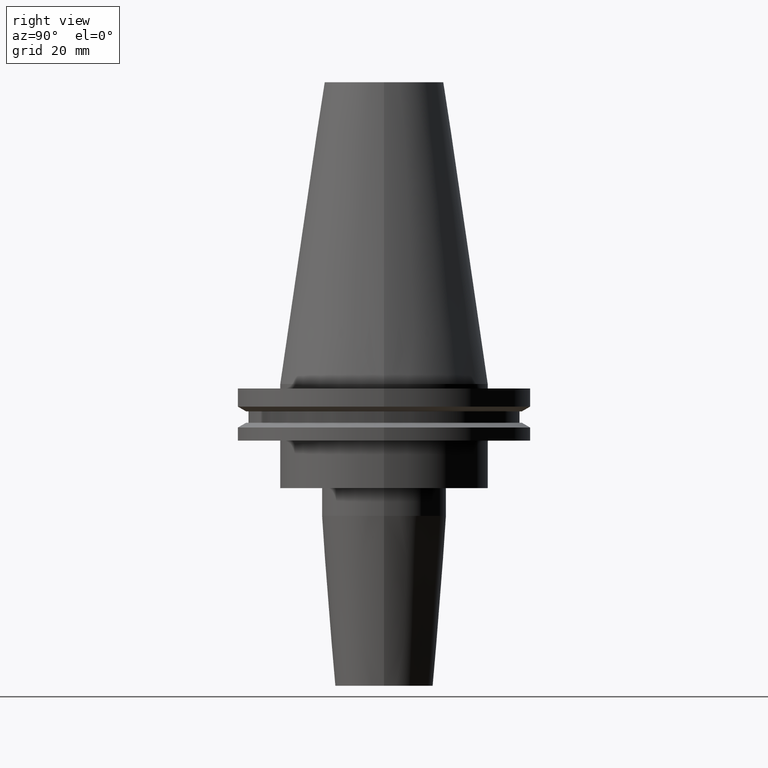
[diagram: clean part render]
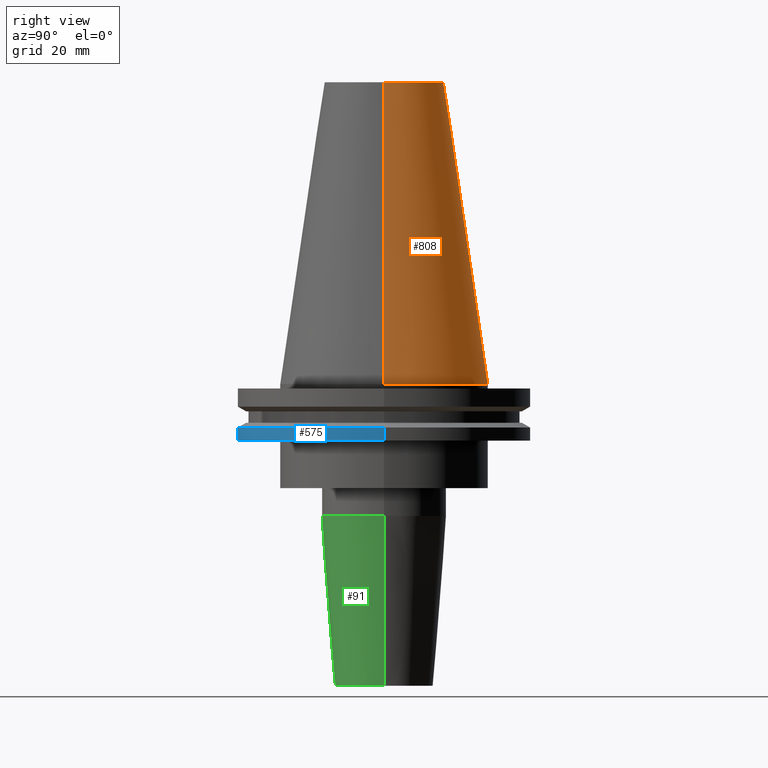
[diagram: same view with three faces highlighted in distinct colors, each labeled with its STEP entity id]
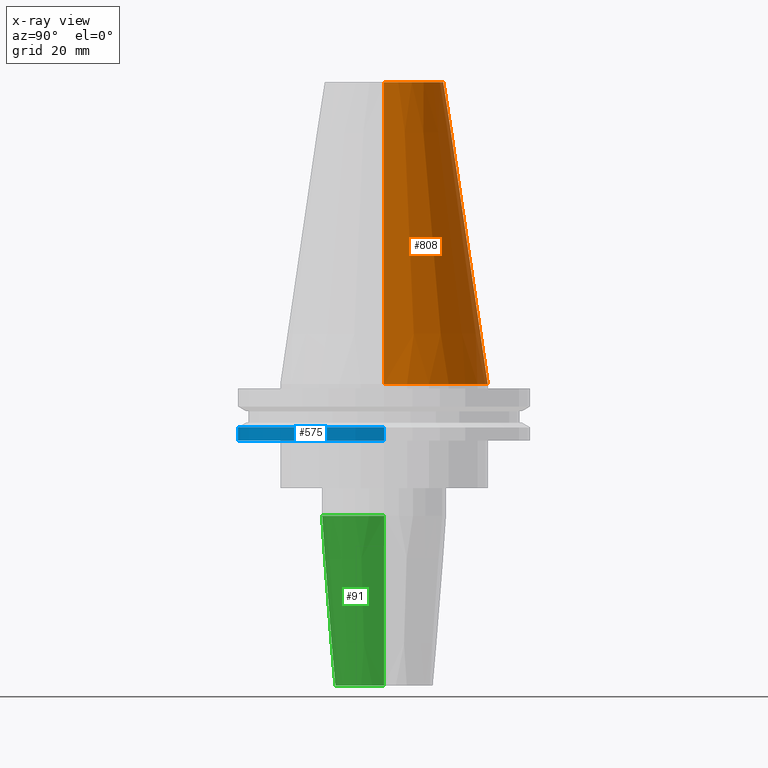
[diagram: x-ray of the same camera — body ghosted, the three highlighted faces saturated]
A machine part, right view with three faces highlighted in distinct colors.
The next image is the same camera in x-ray (body ghosted, the three faces saturated) — at least one of them is partly hidden behind the body in this view.
Their STEP definitions:

[orange] entity #808 — the highlighted conical surface has half-angle 8.297 deg.
#4 = CONICAL_SURFACE ( 'NONE', #386, 34.92499999999999005, 0.1448138465474119452 ) ;
#18 = ORIENTED_EDGE ( 'NONE', *, *, #648, .F. ) ;
#32 = CARTESIAN_POINT ( 'NONE',  ( 34.92499999999999005, 4.277078946022130098E-15, 0.000000000000000000 ) ) ;
#58 = CARTESIAN_POINT ( 'NONE',  ( 0.000000000000000000, 0.000000000000000000, 0.000000000000000000 ) ) ;
#80 = DIRECTION ( 'NONE',  ( 1.000000000000000000, 0.000000000000000000, 0.000000000000000000 ) ) ;
#102 = CARTESIAN_POINT ( 'NONE',  ( -20.10819343178871321, 0.000000000000000000, 101.5999999999999801 ) ) ;
#113 = VERTEX_POINT ( 'NONE', #289 ) ;
#118 = EDGE_CURVE ( 'NONE', #321, #113, #636, .T. ) ;
#191 = CIRCLE ( 'NONE', #561, 20.10819343178871321 ) ;
#286 = EDGE_LOOP ( 'NONE', ( #18, #780, #369, #421 ) ) ;
#289 = CARTESIAN_POINT ( 'NONE',  ( 34.92499999999999005, 4.277078946022130098E-15, 0.000000000000000000 ) ) ;
#321 = VERTEX_POINT ( 'NONE', #540 ) ;
#324 = CARTESIAN_POINT ( 'NONE',  ( -34.92499999999999005, 0.000000000000000000, 0.000000000000000000 ) ) ;
#325 = EDGE_CURVE ( 'NONE', #735, #599, #353, .T. ) ;
#353 = LINE ( 'NONE', #474, #644 ) ;
#363 = DIRECTION ( 'NONE',  ( -0.000000000000000000, -0.000000000000000000, 1.000000000000000000 ) ) ;
#367 = DIRECTION ( 'NONE',  ( 0.000000000000000000, 0.000000000000000000, -1.000000000000000000 ) ) ;
#369 = ORIENTED_EDGE ( 'NONE', *, *, #739, .T. ) ;
#386 = AXIS2_PLACEMENT_3D ( 'NONE', #58, #367, #851 ) ;
#421 = ORIENTED_EDGE ( 'NONE', *, *, #325, .F. ) ;
#433 = AXIS2_PLACEMENT_3D ( 'NONE', #702, #363, #707 ) ;
#474 = CARTESIAN_POINT ( 'NONE',  ( -34.92499999999999005, 0.000000000000000000, 0.000000000000000000 ) ) ;
#482 = DIRECTION ( 'NONE',  ( -0.1443082272672999988, 0.000000000000000000, -0.9895327864921755756 ) ) ;
#483 = DIRECTION ( 'NONE',  ( 0.1443082272672999988, 1.767266086135277066E-17, -0.9895327864921755756 ) ) ;
#540 = CARTESIAN_POINT ( 'NONE',  ( 20.10819343178871321, 3.369811209154858606E-15, 101.5999999999999801 ) ) ;
#553 = FACE_OUTER_BOUND ( 'NONE', #286, .T. ) ;
#561 = AXIS2_PLACEMENT_3D ( 'NONE', #796, #600, #80 ) ;
#599 = VERTEX_POINT ( 'NONE', #324 ) ;
#600 = DIRECTION ( 'NONE',  ( -0.000000000000000000, -0.000000000000000000, 1.000000000000000000 ) ) ;
#636 = LINE ( 'NONE', #32, #844 ) ;
#644 = VECTOR ( 'NONE', #482, 999.9999999999998863 ) ;
#648 = EDGE_CURVE ( 'NONE', #321, #735, #191, .T. ) ;
#673 = CIRCLE ( 'NONE', #433, 34.92499999999999005 ) ;
#702 = CARTESIAN_POINT ( 'NONE',  ( 0.000000000000000000, 0.000000000000000000, 0.000000000000000000 ) ) ;
#707 = DIRECTION ( 'NONE',  ( 1.000000000000000000, 0.000000000000000000, 0.000000000000000000 ) ) ;
#735 = VERTEX_POINT ( 'NONE', #102 ) ;
#739 = EDGE_CURVE ( 'NONE', #113, #599, #673, .T. ) ;
#780 = ORIENTED_EDGE ( 'NONE', *, *, #118, .T. ) ;
#796 = CARTESIAN_POINT ( 'NONE',  ( 0.000000000000000000, 0.000000000000000000, 101.5999999999999801 ) ) ;
#808 = ADVANCED_FACE ( 'NONE', ( #553 ), #4, .T. ) ;
#844 = VECTOR ( 'NONE', #483, 999.9999999999998863 ) ;
#851 = DIRECTION ( 'NONE',  ( -1.000000000000000000, 0.000000000000000000, 0.000000000000000000 ) ) ;

[blue] entity #575 — the highlighted cylindrical surface (partial cylindrical patch) has radius 49.215 mm, axis along (-0, -0, 1).
#12 = CARTESIAN_POINT ( 'NONE',  ( -49.21499999999998920, 6.027099222003697037E-15, 101.5999999999999943 ) ) ;
#14 = AXIS2_PLACEMENT_3D ( 'NONE', #21, #149, #94 ) ;
#21 = CARTESIAN_POINT ( 'NONE',  ( 0.000000000000000000, 0.000000000000000000, -19.04999999999999716 ) ) ;
#94 = DIRECTION ( 'NONE',  ( 1.000000000000000000, 0.000000000000000000, 0.000000000000000000 ) ) ;
#97 = VERTEX_POINT ( 'NONE', #624 ) ;
#115 = ORIENTED_EDGE ( 'NONE', *, *, #715, .F. ) ;
#121 = VERTEX_POINT ( 'NONE', #831 ) ;
#122 = VERTEX_POINT ( 'NONE', #235 ) ;
#148 = CARTESIAN_POINT ( 'NONE',  ( -49.21499999999998920, 6.027099222003697037E-15, -19.04999999999999716 ) ) ;
#149 = DIRECTION ( 'NONE',  ( -0.000000000000000000, -0.000000000000000000, 1.000000000000000000 ) ) ;
#205 = CYLINDRICAL_SURFACE ( 'NONE', #457, 49.21499999999998920 ) ;
#209 = AXIS2_PLACEMENT_3D ( 'NONE', #567, #819, #558 ) ;
#235 = CARTESIAN_POINT ( 'NONE',  ( -49.21499999999998920, 6.027099222003697037E-15, -14.65761014474876944 ) ) ;
#240 = LINE ( 'NONE', #577, #489 ) ;
#275 = DIRECTION ( 'NONE',  ( -0.000000000000000000, -0.000000000000000000, 1.000000000000000000 ) ) ;
#331 = CIRCLE ( 'NONE', #209, 49.21499999999998920 ) ;
#368 = EDGE_CURVE ( 'NONE', #525, #121, #545, .T. ) ;
#373 = DIRECTION ( 'NONE',  ( -0.000000000000000000, -0.000000000000000000, 1.000000000000000000 ) ) ;
#395 = CARTESIAN_POINT ( 'NONE',  ( 0.000000000000000000, 0.000000000000000000, 101.5999999999999943 ) ) ;
#457 = AXIS2_PLACEMENT_3D ( 'NONE', #395, #611, #535 ) ;
#489 = VECTOR ( 'NONE', #373, 1000.000000000000000 ) ;
#525 = VERTEX_POINT ( 'NONE', #148 ) ;
#535 = DIRECTION ( 'NONE',  ( 1.000000000000000000, 0.000000000000000000, 0.000000000000000000 ) ) ;
#545 = CIRCLE ( 'NONE', #14, 49.21499999999998920 ) ;
#558 = DIRECTION ( 'NONE',  ( 1.000000000000000000, 0.000000000000000000, 0.000000000000000000 ) ) ;
#565 = EDGE_CURVE ( 'NONE', #525, #122, #668, .T. ) ;
#567 = CARTESIAN_POINT ( 'NONE',  ( 0.000000000000000000, 0.000000000000000000, -14.65761014474876944 ) ) ;
#575 = ADVANCED_FACE ( 'NONE', ( #812 ), #205, .T. ) ;
#577 = CARTESIAN_POINT ( 'NONE',  ( 49.21499999999998920, 0.000000000000000000, 101.5999999999999943 ) ) ;
#586 = ORIENTED_EDGE ( 'NONE', *, *, #855, .T. ) ;
#609 = EDGE_LOOP ( 'NONE', ( #740, #830, #586, #115 ) ) ;
#611 = DIRECTION ( 'NONE',  ( -0.000000000000000000, -0.000000000000000000, 1.000000000000000000 ) ) ;
#612 = VECTOR ( 'NONE', #275, 1000.000000000000000 ) ;
#624 = CARTESIAN_POINT ( 'NONE',  ( 49.21499999999998920, 0.000000000000000000, -14.65761014474876944 ) ) ;
#668 = LINE ( 'NONE', #12, #612 ) ;
#715 = EDGE_CURVE ( 'NONE', #122, #97, #331, .T. ) ;
#740 = ORIENTED_EDGE ( 'NONE', *, *, #565, .F. ) ;
#812 = FACE_OUTER_BOUND ( 'NONE', #609, .T. ) ;
#819 = DIRECTION ( 'NONE',  ( -0.000000000000000000, -0.000000000000000000, 1.000000000000000000 ) ) ;
#830 = ORIENTED_EDGE ( 'NONE', *, *, #368, .T. ) ;
#831 = CARTESIAN_POINT ( 'NONE',  ( 49.21499999999998920, 0.000000000000000000, -19.04999999999999716 ) ) ;
#855 = EDGE_CURVE ( 'NONE', #121, #97, #240, .T. ) ;

[green] entity #91 — the highlighted conical surface has half-angle 4.5 deg.
#7 = CARTESIAN_POINT ( 'NONE',  ( -16.50000000000000000, 2.296212748401287183E-15, -101.5999999999999943 ) ) ;
#16 = CARTESIAN_POINT ( 'NONE',  ( -16.50000000000000000, 2.020667218593133100E-15, -101.5999999999999943 ) ) ;
#59 = VERTEX_POINT ( 'NONE', #220 ) ;
#63 = CARTESIAN_POINT ( 'NONE',  ( 16.50000000000000000, 0.000000000000000000, -101.5999999999999943 ) ) ;
#91 = ADVANCED_FACE ( 'NONE', ( #692 ), #657, .T. ) ;
#131 = ORIENTED_EDGE ( 'NONE', *, *, #517, .T. ) ;
#137 = AXIS2_PLACEMENT_3D ( 'NONE', #828, #767, #566 ) ;
#167 = DIRECTION ( 'NONE',  ( -0.000000000000000000, -0.000000000000000000, 1.000000000000000000 ) ) ;
#197 = VERTEX_POINT ( 'NONE', #7 ) ;
#214 = ORIENTED_EDGE ( 'NONE', *, *, #630, .T. ) ;
#220 = CARTESIAN_POINT ( 'NONE',  ( 20.99999999999999645, 0.000000000000000000, -44.42207868720840480 ) ) ;
#237 = CARTESIAN_POINT ( 'NONE',  ( 16.50000000000000000, 0.000000000000000000, -101.5999999999999943 ) ) ;
#262 = DIRECTION ( 'NONE',  ( -0.000000000000000000, -0.000000000000000000, 1.000000000000000000 ) ) ;
#350 = CARTESIAN_POINT ( 'NONE',  ( -20.99999999999999645, 2.571758278209441267E-15, -44.42207868720840480 ) ) ;
#352 = DIRECTION ( 'NONE',  ( 1.000000000000000000, 0.000000000000000000, 0.000000000000000000 ) ) ;
#375 = ORIENTED_EDGE ( 'NONE', *, *, #676, .F. ) ;
#380 = VERTEX_POINT ( 'NONE', #350 ) ;
#399 = LINE ( 'NONE', #63, #820 ) ;
#479 = ORIENTED_EDGE ( 'NONE', *, *, #579, .F. ) ;
#488 = CIRCLE ( 'NONE', #719, 16.50000000000000000 ) ;
#517 = EDGE_CURVE ( 'NONE', #197, #742, #488, .T. ) ;
#531 = CIRCLE ( 'NONE', #807, 20.99999999999999645 ) ;
#538 = EDGE_LOOP ( 'NONE', ( #479, #131, #214, #375 ) ) ;
#544 = DIRECTION ( 'NONE',  ( 1.000000000000000000, 0.000000000000000000, 0.000000000000000000 ) ) ;
#566 = DIRECTION ( 'NONE',  ( 1.000000000000000000, 0.000000000000000000, 0.000000000000000000 ) ) ;
#579 = EDGE_CURVE ( 'NONE', #197, #380, #799, .T. ) ;
#630 = EDGE_CURVE ( 'NONE', #742, #59, #399, .T. ) ;
#657 = CONICAL_SURFACE ( 'NONE', #137, 16.50000000000000000, 0.07853981633973738941 ) ;
#676 = EDGE_CURVE ( 'NONE', #380, #59, #531, .T. ) ;
#692 = FACE_OUTER_BOUND ( 'NONE', #538, .T. ) ;
#719 = AXIS2_PLACEMENT_3D ( 'NONE', #786, #262, #544 ) ;
#742 = VERTEX_POINT ( 'NONE', #237 ) ;
#767 = DIRECTION ( 'NONE',  ( -0.000000000000000000, -0.000000000000000000, 1.000000000000000000 ) ) ;
#786 = CARTESIAN_POINT ( 'NONE',  ( 0.000000000000000000, 0.000000000000000000, -101.5999999999999943 ) ) ;
#799 = LINE ( 'NONE', #16, #845 ) ;
#807 = AXIS2_PLACEMENT_3D ( 'NONE', #826, #167, #352 ) ;
#809 = DIRECTION ( 'NONE',  ( -0.07845909572783751895, 9.608468044709198293E-18, 0.9969173337331286300 ) ) ;
#820 = VECTOR ( 'NONE', #854, 999.9999999999998863 ) ;
#826 = CARTESIAN_POINT ( 'NONE',  ( 0.000000000000000000, 0.000000000000000000, -44.42207868720840480 ) ) ;
#828 = CARTESIAN_POINT ( 'NONE',  ( 0.000000000000000000, 0.000000000000000000, -101.5999999999999943 ) ) ;
#845 = VECTOR ( 'NONE', #809, 999.9999999999998863 ) ;
#854 = DIRECTION ( 'NONE',  ( 0.07845909572783751895, 0.000000000000000000, 0.9969173337331286300 ) ) ;